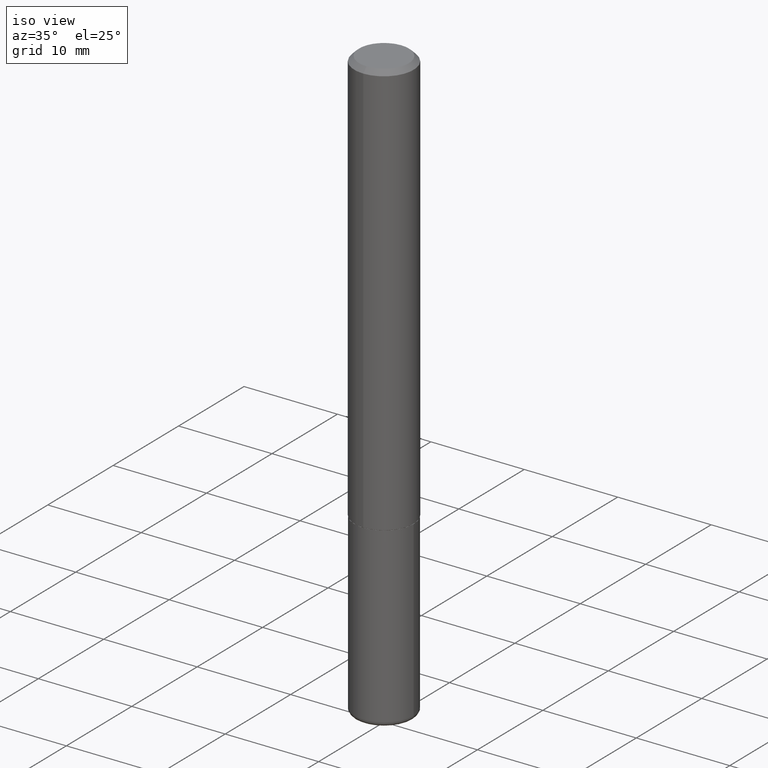
[diagram: clean part render]
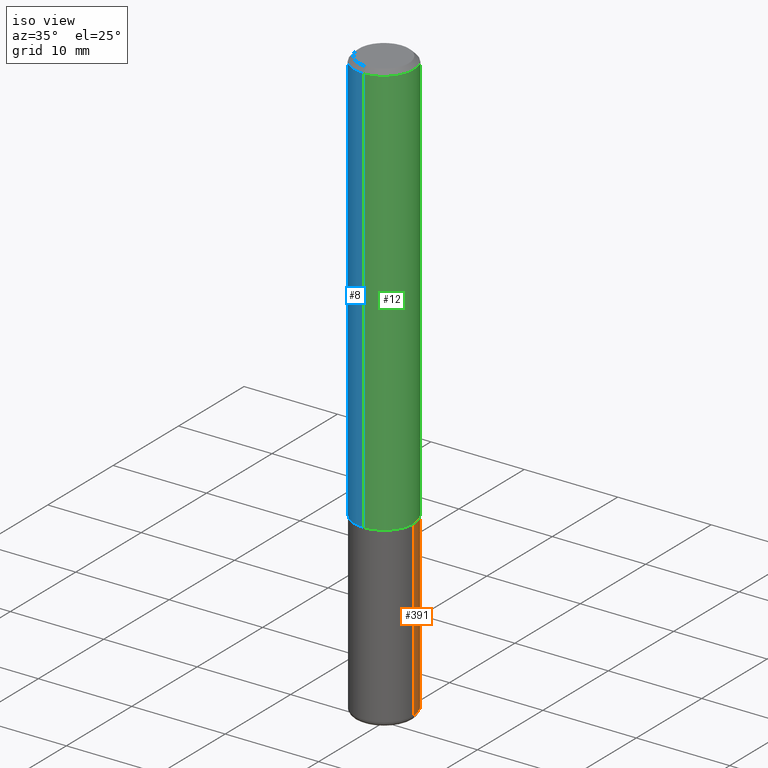
[diagram: same view with three faces highlighted in distinct colors, each labeled with its STEP entity id]
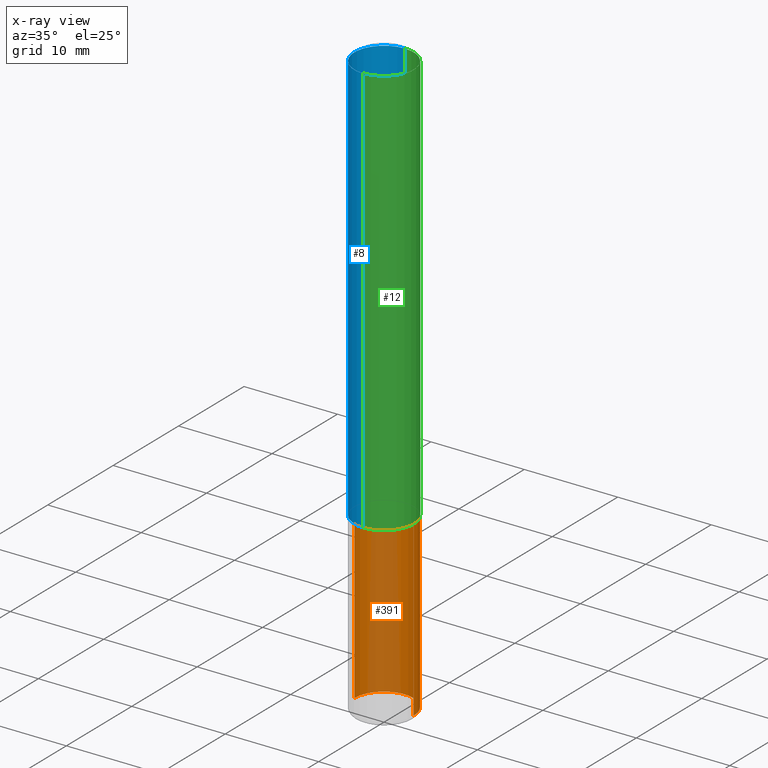
[diagram: x-ray of the same camera — body ghosted, the three highlighted faces saturated]
A machine part, iso view with three faces highlighted in distinct colors.
The next image is the same camera in x-ray (body ghosted, the three faces saturated) — at least one of them is partly hidden behind the body in this view.
Their STEP definitions:

[orange] entity #391 — the highlighted cylindrical surface (edge-blend (fillet) strip) has radius 3.175 mm, axis along (-0, 0, 1).
#9 = DIRECTION ( 'NONE',  ( -2.445468806185136597E-29, 3.491481338843145583E-15, 1.000000000000000000 ) ) ;
#20 = LINE ( 'NONE', #372, #78 ) ;
#21 = VERTEX_POINT ( 'NONE', #361 ) ;
#41 = CYLINDRICAL_SURFACE ( 'NONE', #400, 0.1250000000000000000 ) ;
#44 = AXIS2_PLACEMENT_3D ( 'NONE', #345, #289, #231 ) ;
#56 = CARTESIAN_POINT ( 'NONE',  ( -0.1250000000000000000, 8.881784197001252323E-16, -6.148668862818632227E-30 ) ) ;
#62 = CIRCLE ( 'NONE', #205, 0.1249999999999999861 ) ;
#78 = VECTOR ( 'NONE', #88, 39.37007874015748143 ) ;
#88 = DIRECTION ( 'NONE',  ( -2.445468806185136877E-29, 3.491481338843145188E-15, 1.000000000000000000 ) ) ;
#98 = FACE_OUTER_BOUND ( 'NONE', #398, .T. ) ;
#101 = DIRECTION ( 'NONE',  ( 1.000000000000000000, -6.982962677686263555E-15, 0.000000000000000000 ) ) ;
#135 = VECTOR ( 'NONE', #314, 39.37007874015748143 ) ;
#140 = CARTESIAN_POINT ( 'NONE',  ( 6.064762639339139522E-29, -8.658873720331001644E-15, -2.480000000000000426 ) ) ;
#146 = VERTEX_POINT ( 'NONE', #219 ) ;
#161 = CARTESIAN_POINT ( 'NONE',  ( -0.1250000000000000000, -6.496304611953128320E-15, -1.750000000000000222 ) ) ;
#194 = ORIENTED_EDGE ( 'NONE', *, *, #327, .F. ) ;
#205 = AXIS2_PLACEMENT_3D ( 'NONE', #140, #269, #101 ) ;
#209 = EDGE_CURVE ( 'NONE', #146, #21, #20, .T. ) ;
#214 = EDGE_CURVE ( 'NONE', #241, #218, #341, .T. ) ;
#218 = VERTEX_POINT ( 'NONE', #161 ) ;
#219 = CARTESIAN_POINT ( 'NONE',  ( 0.1250000000000000555, -9.531744055041784983E-15, -2.480000000000000426 ) ) ;
#231 = DIRECTION ( 'NONE',  ( 1.000000000000000000, -6.982962677686262766E-15, 0.000000000000000000 ) ) ;
#238 = CARTESIAN_POINT ( 'NONE',  ( 0.000000000000000000, 0.000000000000000000, 0.000000000000000000 ) ) ;
#240 = ORIENTED_EDGE ( 'NONE', *, *, #412, .T. ) ;
#241 = VERTEX_POINT ( 'NONE', #291 ) ;
#243 = CIRCLE ( 'NONE', #44, 0.1250000000000000000 ) ;
#269 = DIRECTION ( 'NONE',  ( -2.445468806185136597E-29, 3.491481338843145583E-15, 1.000000000000000000 ) ) ;
#273 = ORIENTED_EDGE ( 'NONE', *, *, #209, .F. ) ;
#289 = DIRECTION ( 'NONE',  ( -2.445468806185136597E-29, 3.491481338843145583E-15, 1.000000000000000000 ) ) ;
#291 = CARTESIAN_POINT ( 'NONE',  ( -0.1250000000000000555, -7.770695300630876412E-15, -2.480000000000000426 ) ) ;
#301 = DIRECTION ( 'NONE',  ( 1.000000000000000000, -6.982962677686266711E-15, 4.876176775795935793E-29 ) ) ;
#314 = DIRECTION ( 'NONE',  ( -2.445468806185136877E-29, 3.491481338843145188E-15, 1.000000000000000000 ) ) ;
#327 = EDGE_CURVE ( 'NONE', #21, #218, #243, .T. ) ;
#341 = LINE ( 'NONE', #56, #135 ) ;
#345 = CARTESIAN_POINT ( 'NONE',  ( 4.279570410823989044E-29, -6.110092342975505460E-15, -1.750000000000000222 ) ) ;
#361 = CARTESIAN_POINT ( 'NONE',  ( 0.1250000000000000000, -6.982962677686288010E-15, -1.750000000000000222 ) ) ;
#369 = ORIENTED_EDGE ( 'NONE', *, *, #214, .T. ) ;
#372 = CARTESIAN_POINT ( 'NONE',  ( 0.1250000000000000000, -8.728703347107833388E-16, 6.095220969744919741E-30 ) ) ;
#391 = ADVANCED_FACE ( 'NONE', ( #98 ), #41, .T. ) ;
#398 = EDGE_LOOP ( 'NONE', ( #240, #369, #194, #273 ) ) ;
#400 = AXIS2_PLACEMENT_3D ( 'NONE', #238, #9, #301 ) ;
#412 = EDGE_CURVE ( 'NONE', #146, #241, #62, .T. ) ;

[blue] entity #8 — the highlighted cylindrical surface (edge-blend (fillet) strip) has radius 3.175 mm, axis along (-0, 0, 1).
#8 = ADVANCED_FACE ( 'NONE', ( #385 ), #233, .T. ) ;
#13 = CARTESIAN_POINT ( 'NONE',  ( 8.881784197001260212E-16, 0.1250000000000001110, -4.364281115688010942E-16 ) ) ;
#14 = VERTEX_POINT ( 'NONE', #104 ) ;
#30 = DIRECTION ( 'NONE',  ( -2.445508222420686392E-29, 3.491424892550405598E-15, 1.000000000000000000 ) ) ;
#37 = DIRECTION ( 'NONE',  ( -2.445508222420686392E-29, 3.491424892550405598E-15, 1.000000000000000000 ) ) ;
#58 = VERTEX_POINT ( 'NONE', #213 ) ;
#66 = EDGE_CURVE ( 'NONE', #58, #14, #80, .T. ) ;
#73 = CARTESIAN_POINT ( 'NONE',  ( 0.000000000000000000, 0.000000000000000000, 0.000000000000000000 ) ) ;
#80 = LINE ( 'NONE', #148, #316 ) ;
#87 = AXIS2_PLACEMENT_3D ( 'NONE', #229, #242, #303 ) ;
#93 = DIRECTION ( 'NONE',  ( -6.982962677686265922E-15, -1.000000000000000000, 3.483106191921935554E-15 ) ) ;
#104 = CARTESIAN_POINT ( 'NONE',  ( -8.575622497214408537E-16, -0.1250000000000000555, -0.01999999999999959102 ) ) ;
#132 = EDGE_CURVE ( 'NONE', #328, #389, #306, .T. ) ;
#148 = CARTESIAN_POINT ( 'NONE',  ( -8.728703347107841277E-16, -0.1250000000000001110, 4.364281115688010942E-16 ) ) ;
#149 = EDGE_LOOP ( 'NONE', ( #267, #302, #355, #286 ) ) ;
#175 = AXIS2_PLACEMENT_3D ( 'NONE', #73, #37, #265 ) ;
#199 = CARTESIAN_POINT ( 'NONE',  ( 4.891016444841379090E-31, -6.982849785100820021E-17, -0.02000000000000002470 ) ) ;
#207 = CARTESIAN_POINT ( 'NONE',  ( 8.728703347107837333E-16, 0.1249999999999999306, -0.02000000000000046185 ) ) ;
#213 = CARTESIAN_POINT ( 'NONE',  ( -8.728703347107421208E-16, -0.1250000000000063560, -1.748999999999999666 ) ) ;
#226 = AXIS2_PLACEMENT_3D ( 'NONE', #199, #30, #93 ) ;
#229 = CARTESIAN_POINT ( 'NONE',  ( 4.277193881013780975E-29, -6.106502137070658644E-15, -1.749000000000000110 ) ) ;
#233 = CYLINDRICAL_SURFACE ( 'NONE', #175, 0.1250000000000001110 ) ;
#234 = CIRCLE ( 'NONE', #87, 0.1250000000000002498 ) ;
#242 = DIRECTION ( 'NONE',  ( -2.445508222420686392E-29, 3.491424892550405598E-15, 1.000000000000000000 ) ) ;
#247 = DIRECTION ( 'NONE',  ( -2.445508222420686392E-29, 3.491424892550405992E-15, 1.000000000000000000 ) ) ;
#252 = EDGE_CURVE ( 'NONE', #389, #14, #298, .T. ) ;
#258 = VECTOR ( 'NONE', #247, 39.37007874015748143 ) ;
#265 = DIRECTION ( 'NONE',  ( -6.982962677686266711E-15, -1.000000000000000000, 3.491424892550405598E-15 ) ) ;
#267 = ORIENTED_EDGE ( 'NONE', *, *, #132, .F. ) ;
#286 = ORIENTED_EDGE ( 'NONE', *, *, #252, .F. ) ;
#298 = CIRCLE ( 'NONE', #226, 0.1250000000000000000 ) ;
#302 = ORIENTED_EDGE ( 'NONE', *, *, #383, .T. ) ;
#303 = DIRECTION ( 'NONE',  ( -6.982962677686265133E-15, -1.000000000000000000, 4.370956789862812472E-15 ) ) ;
#306 = LINE ( 'NONE', #13, #258 ) ;
#316 = VECTOR ( 'NONE', #396, 39.37007874015748143 ) ;
#323 = CARTESIAN_POINT ( 'NONE',  ( 8.881784197001479121E-16, 0.1249999999999941019, -1.749000000000000554 ) ) ;
#328 = VERTEX_POINT ( 'NONE', #323 ) ;
#355 = ORIENTED_EDGE ( 'NONE', *, *, #66, .T. ) ;
#383 = EDGE_CURVE ( 'NONE', #328, #58, #234, .T. ) ;
#385 = FACE_OUTER_BOUND ( 'NONE', #149, .T. ) ;
#389 = VERTEX_POINT ( 'NONE', #207 ) ;
#396 = DIRECTION ( 'NONE',  ( -2.445508222420686392E-29, 3.491424892550405992E-15, 1.000000000000000000 ) ) ;

[green] entity #12 — the highlighted cylindrical surface (edge-blend (fillet) strip) has radius 3.175 mm, axis along (-0, 0, 1).
#6 = AXIS2_PLACEMENT_3D ( 'NONE', #339, #272, #114 ) ;
#12 = ADVANCED_FACE ( 'NONE', ( #173 ), #296, .T. ) ;
#13 = CARTESIAN_POINT ( 'NONE',  ( 8.881784197001260212E-16, 0.1250000000000001110, -4.364281115688010942E-16 ) ) ;
#14 = VERTEX_POINT ( 'NONE', #104 ) ;
#26 = AXIS2_PLACEMENT_3D ( 'NONE', #319, #413, #415 ) ;
#53 = ORIENTED_EDGE ( 'NONE', *, *, #132, .T. ) ;
#57 = EDGE_CURVE ( 'NONE', #14, #389, #184, .T. ) ;
#58 = VERTEX_POINT ( 'NONE', #213 ) ;
#66 = EDGE_CURVE ( 'NONE', #58, #14, #80, .T. ) ;
#80 = LINE ( 'NONE', #148, #316 ) ;
#104 = CARTESIAN_POINT ( 'NONE',  ( -8.575622497214408537E-16, -0.1250000000000000555, -0.01999999999999959102 ) ) ;
#114 = DIRECTION ( 'NONE',  ( -6.982962677686265922E-15, -1.000000000000000000, 3.483106191921935554E-15 ) ) ;
#126 = DIRECTION ( 'NONE',  ( -2.445508222420686392E-29, 3.491424892550405598E-15, 1.000000000000000000 ) ) ;
#132 = EDGE_CURVE ( 'NONE', #328, #389, #306, .T. ) ;
#145 = DIRECTION ( 'NONE',  ( -6.982962677686266711E-15, -1.000000000000000000, 3.491424892550405598E-15 ) ) ;
#148 = CARTESIAN_POINT ( 'NONE',  ( -8.728703347107841277E-16, -0.1250000000000001110, 4.364281115688010942E-16 ) ) ;
#166 = EDGE_LOOP ( 'NONE', ( #180, #53, #188, #305 ) ) ;
#173 = FACE_OUTER_BOUND ( 'NONE', #166, .T. ) ;
#180 = ORIENTED_EDGE ( 'NONE', *, *, #300, .T. ) ;
#184 = CIRCLE ( 'NONE', #6, 0.1250000000000000000 ) ;
#188 = ORIENTED_EDGE ( 'NONE', *, *, #57, .F. ) ;
#207 = CARTESIAN_POINT ( 'NONE',  ( 8.728703347107837333E-16, 0.1249999999999999306, -0.02000000000000046185 ) ) ;
#213 = CARTESIAN_POINT ( 'NONE',  ( -8.728703347107421208E-16, -0.1250000000000063560, -1.748999999999999666 ) ) ;
#247 = DIRECTION ( 'NONE',  ( -2.445508222420686392E-29, 3.491424892550405992E-15, 1.000000000000000000 ) ) ;
#258 = VECTOR ( 'NONE', #247, 39.37007874015748143 ) ;
#272 = DIRECTION ( 'NONE',  ( -2.445508222420686392E-29, 3.491424892550405598E-15, 1.000000000000000000 ) ) ;
#296 = CYLINDRICAL_SURFACE ( 'NONE', #322, 0.1250000000000001110 ) ;
#300 = EDGE_CURVE ( 'NONE', #58, #328, #380, .T. ) ;
#305 = ORIENTED_EDGE ( 'NONE', *, *, #66, .F. ) ;
#306 = LINE ( 'NONE', #13, #258 ) ;
#316 = VECTOR ( 'NONE', #396, 39.37007874015748143 ) ;
#319 = CARTESIAN_POINT ( 'NONE',  ( 4.277193881013780975E-29, -6.106502137070658644E-15, -1.749000000000000110 ) ) ;
#322 = AXIS2_PLACEMENT_3D ( 'NONE', #418, #126, #145 ) ;
#323 = CARTESIAN_POINT ( 'NONE',  ( 8.881784197001479121E-16, 0.1249999999999941019, -1.749000000000000554 ) ) ;
#328 = VERTEX_POINT ( 'NONE', #323 ) ;
#339 = CARTESIAN_POINT ( 'NONE',  ( 4.891016444841379090E-31, -6.982849785100820021E-17, -0.02000000000000002470 ) ) ;
#380 = CIRCLE ( 'NONE', #26, 0.1250000000000002498 ) ;
#389 = VERTEX_POINT ( 'NONE', #207 ) ;
#396 = DIRECTION ( 'NONE',  ( -2.445508222420686392E-29, 3.491424892550405992E-15, 1.000000000000000000 ) ) ;
#413 = DIRECTION ( 'NONE',  ( -2.445508222420686392E-29, 3.491424892550405598E-15, 1.000000000000000000 ) ) ;
#415 = DIRECTION ( 'NONE',  ( -6.982962677686265133E-15, -1.000000000000000000, 4.370956789862812472E-15 ) ) ;
#418 = CARTESIAN_POINT ( 'NONE',  ( 0.000000000000000000, 0.000000000000000000, 0.000000000000000000 ) ) ;